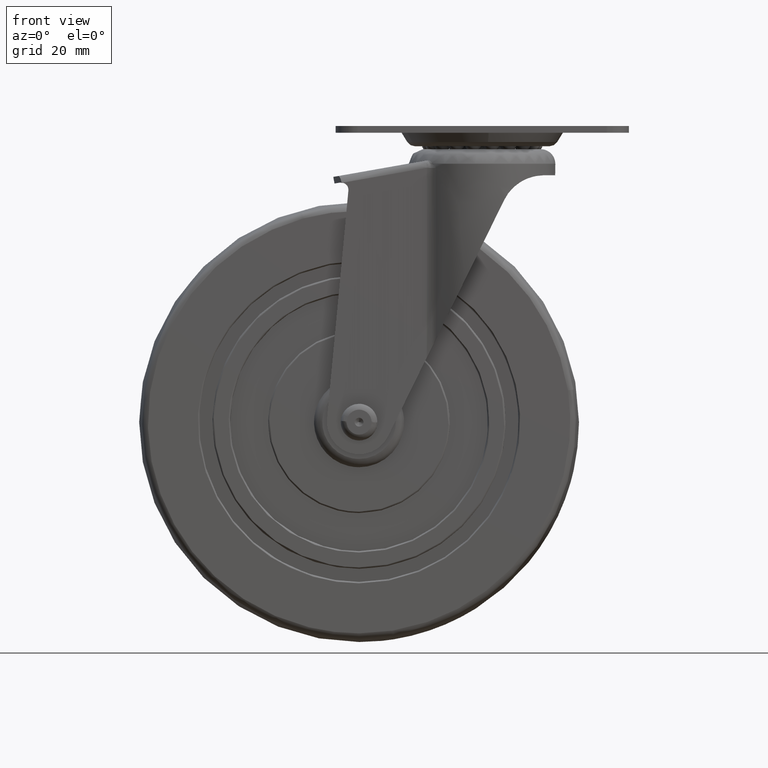
[diagram: clean part render]
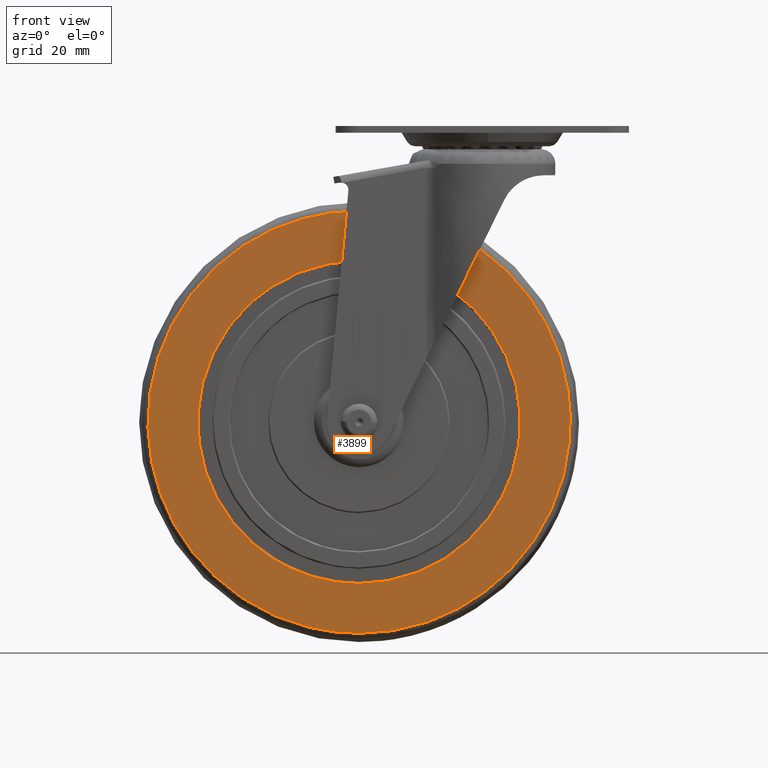
[diagram: same view with one face highlighted and labeled with its STEP entity id]
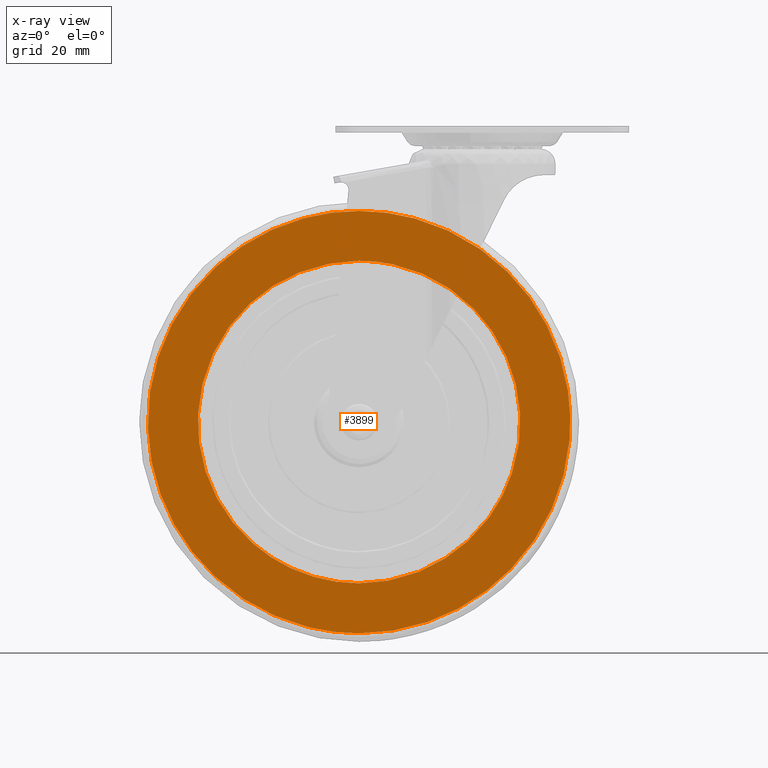
[diagram: x-ray of the same camera — body ghosted, the highlighted face saturated]
A machine part, front view. The second image highlights one B-rep face of the part: STEP entity #3899.
The next image is the same camera in x-ray: the body ghosted, the highlighted face saturated — about 0% of this face is hidden behind the body in this view.
In plain terms, the highlighted face is a freeform B-spline surface patch.
Its self-contained STEP definition (entity closure, byte-faithful):
#1563=CARTESIAN_POINT('',(52.136574072313117,-13.499999668968760,-17.515103733699409));
#1564=VERTEX_POINT('',#1563);
#1565=CARTESIAN_POINT('',(0.0,-13.499999668968760,55.000011048105200));
#1566=VERTEX_POINT('',#1565);
#1567=CARTESIAN_POINT('',(52.136574072313124,-13.499999668968758,-17.515103733699416));
#1568=CARTESIAN_POINT('',(55.000011048105200,-13.499999668968758,-8.991614748774151));
#1569=CARTESIAN_POINT('',(55.000011048105200,-13.499999668968760,1.855278E-015));
#1570=CARTESIAN_POINT('',(55.000011048105186,-13.499999668968757,55.000011048105186));
#1571=CARTESIAN_POINT('',(0.0,-13.499999668968760,55.000011048105200));
#1579=(BOUNDED_CURVE()B_SPLINE_CURVE(2,(#1567,#1568,#1569,#1570,#1571),.UNSPECIFIED.,.F.,.U.)B_SPLINE_CURVE_WITH_KNOTS((3,2,3),(0.195865557710903,0.250000000000000,0.500000000000000),.UNSPECIFIED.)CURVE()GEOMETRIC_REPRESENTATION_ITEM()RATIONAL_B_SPLINE_CURVE((0.900621820758485,0.936577555797102,1.0,0.707106781186547,1.0))REPRESENTATION_ITEM(''));
#1580=EDGE_CURVE('',#1564,#1566,#1579,.T.);
#1582=CARTESIAN_POINT('',(-23.417865725279949,-13.499999668968760,-49.765497850240550));
#1583=VERTEX_POINT('',#1582);
#1584=CARTESIAN_POINT('',(0.0,-13.499999668968760,55.000011048105200));
#1585=CARTESIAN_POINT('',(-55.000011048105186,-13.499999668968757,55.000011048105186));
#1586=CARTESIAN_POINT('',(-55.000011048105200,-13.499999668968760,1.855278E-015));
#1587=CARTESIAN_POINT('',(-55.000011048105186,-13.499999668968757,-34.904068376000055));
#1588=CARTESIAN_POINT('',(-23.417865725279952,-13.499999668968755,-49.765497850240550));
#1596=(BOUNDED_CURVE()B_SPLINE_CURVE(2,(#1584,#1585,#1586,#1587,#1588),.UNSPECIFIED.,.F.,.U.)B_SPLINE_CURVE_WITH_KNOTS((3,2,3),(0.500000000000000,0.750000000000000,0.927668464635391),.UNSPECIFIED.)CURVE()GEOMETRIC_REPRESENTATION_ITEM()RATIONAL_B_SPLINE_CURVE((1.0,0.707106781186547,1.0,0.791848446045185,0.879552628111352))REPRESENTATION_ITEM(''));
#1597=EDGE_CURVE('',#1566,#1583,#1596,.T.);
#1669=CARTESIAN_POINT('',(0.0,-13.499999668968760,-55.000011048105200));
#1670=VERTEX_POINT('',#1669);
#1671=CARTESIAN_POINT('',(0.0,-13.499999668968760,-55.000011048105200));
#1672=CARTESIAN_POINT('',(39.543647676665437,-13.499999668968757,-55.000011048105208));
#1673=CARTESIAN_POINT('',(52.136574072313124,-13.499999668968757,-17.515103733699416));
#1681=(BOUNDED_CURVE()B_SPLINE_CURVE(2,(#1671,#1672,#1673),.UNSPECIFIED.,.F.,.U.)B_SPLINE_CURVE_WITH_KNOTS((3,3),(0.0,0.195865557710904),.UNSPECIFIED.)CURVE()GEOMETRIC_REPRESENTATION_ITEM()RATIONAL_B_SPLINE_CURVE((1.0,0.770529225389446,0.900621820758485))REPRESENTATION_ITEM(''));
#1682=EDGE_CURVE('',#1670,#1564,#1681,.T.);
#1688=CARTESIAN_POINT('',(-23.417865725279952,-13.499999668968762,-49.765497850240550));
#1689=CARTESIAN_POINT('',(-12.293959029088372,-13.499999668968762,-55.000011048105200));
#1690=CARTESIAN_POINT('',(0.0,-13.499999668968760,-55.000011048105200));
#1698=(BOUNDED_CURVE()B_SPLINE_CURVE(2,(#1688,#1689,#1690),.UNSPECIFIED.,.F.,.U.)B_SPLINE_CURVE_WITH_KNOTS((3,3),(0.927668464635392,1.0),.UNSPECIFIED.)CURVE()GEOMETRIC_REPRESENTATION_ITEM()RATIONAL_B_SPLINE_CURVE((0.879552628111353,0.915258335141364,1.0))REPRESENTATION_ITEM(''));
#1699=EDGE_CURVE('',#1583,#1670,#1698,.T.);
#3586=CARTESIAN_POINT('',(-18.968385858765519,-13.499999668968361,69.477735947452160));
#3587=VERTEX_POINT('',#3586);
#3588=CARTESIAN_POINT('',(0.0,-13.499999668968760,-72.020521048105110));
#3589=VERTEX_POINT('',#3588);
#3590=CARTESIAN_POINT('',(-18.968385858765519,-13.499999668968364,69.477735947452160));
#3591=CARTESIAN_POINT('',(-72.020521048105110,-13.499999668968760,54.993766969430858));
#3592=CARTESIAN_POINT('',(-72.020521048105110,-13.499999668968760,1.855278E-015));
#3593=CARTESIAN_POINT('',(-72.020521048105110,-13.499999668968758,-72.020521048105110));
#3594=CARTESIAN_POINT('',(0.0,-13.499999668968760,-72.020521048105110));
#3602=(BOUNDED_CURVE()B_SPLINE_CURVE(2,(#3590,#3591,#3592,#3593,#3594),.UNSPECIFIED.,.F.,.U.)B_SPLINE_CURVE_WITH_KNOTS((3,2,3),(0.544901926751215,0.750000000000000,1.0),.UNSPECIFIED.)CURVE()GEOMETRIC_REPRESENTATION_ITEM()RATIONAL_B_SPLINE_CURVE((0.913685083901490,0.759712660614904,1.0,0.707106781186548,1.0))REPRESENTATION_ITEM(''));
#3603=EDGE_CURVE('',#3587,#3589,#3602,.T.);
#3669=CARTESIAN_POINT('',(71.203213841822077,-13.499999668968330,10.819325211668200));
#3670=VERTEX_POINT('',#3669);
#3684=CARTESIAN_POINT('',(0.0,-13.499999668968760,-72.020521048105110));
#3685=CARTESIAN_POINT('',(72.020521048105110,-13.499999668968758,-72.020521048105110));
#3686=CARTESIAN_POINT('',(72.020521048105110,-13.499999668968760,1.855278E-015));
#3687=CARTESIAN_POINT('',(72.020521048105110,-13.499999668968764,5.440532880285036));
#3688=CARTESIAN_POINT('',(71.203213841822077,-13.499999668968329,10.819325211668200));
#3696=(BOUNDED_CURVE()B_SPLINE_CURVE(2,(#3684,#3685,#3686,#3687,#3688),.UNSPECIFIED.,.F.,.U.)B_SPLINE_CURVE_WITH_KNOTS((3,2,3),(0.0,0.250000000000000,0.275897584626825),.UNSPECIFIED.)CURVE()GEOMETRIC_REPRESENTATION_ITEM()RATIONAL_B_SPLINE_CURVE((1.0,0.707106781186548,1.0,0.969659092316622,0.945604234428324))REPRESENTATION_ITEM(''));
#3697=EDGE_CURVE('',#3589,#3670,#3696,.T.);
#3725=CARTESIAN_POINT('',(0.0,-13.499999668968760,72.020521048105110));
#3726=VERTEX_POINT('',#3725);
#3727=CARTESIAN_POINT('',(0.0,-13.499999668968760,72.020521048105110));
#3728=CARTESIAN_POINT('',(-9.654627992204969,-13.499999668968762,72.020521048105110));
#3729=CARTESIAN_POINT('',(-18.968385858765515,-13.499999668968357,69.477735947452160));
#3737=(BOUNDED_CURVE()B_SPLINE_CURVE(2,(#3727,#3728,#3729),.UNSPECIFIED.,.F.,.U.)B_SPLINE_CURVE_WITH_KNOTS((3,3),(0.500000000000000,0.544901926751215),.UNSPECIFIED.)CURVE()GEOMETRIC_REPRESENTATION_ITEM()RATIONAL_B_SPLINE_CURVE((1.0,0.947394120571643,0.913685083901489))REPRESENTATION_ITEM(''));
#3738=EDGE_CURVE('',#3726,#3587,#3737,.T.);
#3740=CARTESIAN_POINT('',(71.203213841822077,-13.499999668968329,10.819325211668200));
#3741=CARTESIAN_POINT('',(61.903694773582458,-13.499999668968760,72.020521048105110));
#3742=CARTESIAN_POINT('',(0.0,-13.499999668968760,72.020521048105110));
#3750=(BOUNDED_CURVE()B_SPLINE_CURVE(2,(#3740,#3741,#3742),.UNSPECIFIED.,.F.,.U.)B_SPLINE_CURVE_WITH_KNOTS((3,3),(0.275897584626825,0.500000000000000),.UNSPECIFIED.)CURVE()GEOMETRIC_REPRESENTATION_ITEM()RATIONAL_B_SPLINE_CURVE((0.945604234428324,0.737447688869926,1.0))REPRESENTATION_ITEM(''));
#3751=EDGE_CURVE('',#3670,#3726,#3750,.T.);
#3882=CARTESIAN_POINT('',(-79.161603808411627,-13.499999668968760,79.215373525939796));
#3883=CARTESIAN_POINT('',(-79.161603808411627,-13.499999668968760,-79.215374813767085));
#3884=CARTESIAN_POINT('',(79.195604223493291,-13.499999668968760,79.215373525939796));
#3885=CARTESIAN_POINT('',(79.195604223493291,-13.499999668968760,-79.215374813767085));
#3886=B_SPLINE_SURFACE_WITH_KNOTS('',1,1,((#3882,#3884),(#3883,#3885)),.UNSPECIFIED.,.F.,.F.,.U.,(2,2),(2,2),(0.0,158.430748339706890),(0.0,158.357208031904890),.UNSPECIFIED.);
#3887=ORIENTED_EDGE('',*,*,#3697,.T.);
#3888=ORIENTED_EDGE('',*,*,#3751,.T.);
#3889=ORIENTED_EDGE('',*,*,#3738,.T.);
#3890=ORIENTED_EDGE('',*,*,#3603,.T.);
#3891=EDGE_LOOP('',(#3887,#3888,#3889,#3890));
#3892=FACE_OUTER_BOUND('',#3891,.T.);
#3893=ORIENTED_EDGE('',*,*,#1597,.F.);
#3894=ORIENTED_EDGE('',*,*,#1580,.F.);
#3895=ORIENTED_EDGE('',*,*,#1682,.F.);
#3896=ORIENTED_EDGE('',*,*,#1699,.F.);
#3897=EDGE_LOOP('',(#3893,#3894,#3895,#3896));
#3898=FACE_BOUND('',#3897,.T.);
#3899=ADVANCED_FACE('',(#3892,#3898),#3886,.T.);